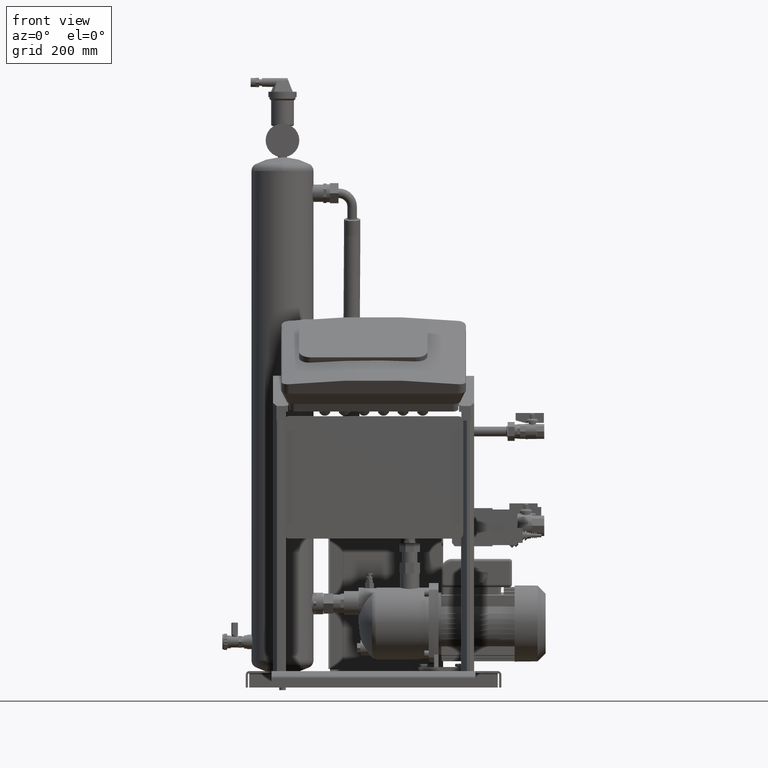
[diagram: clean part render]
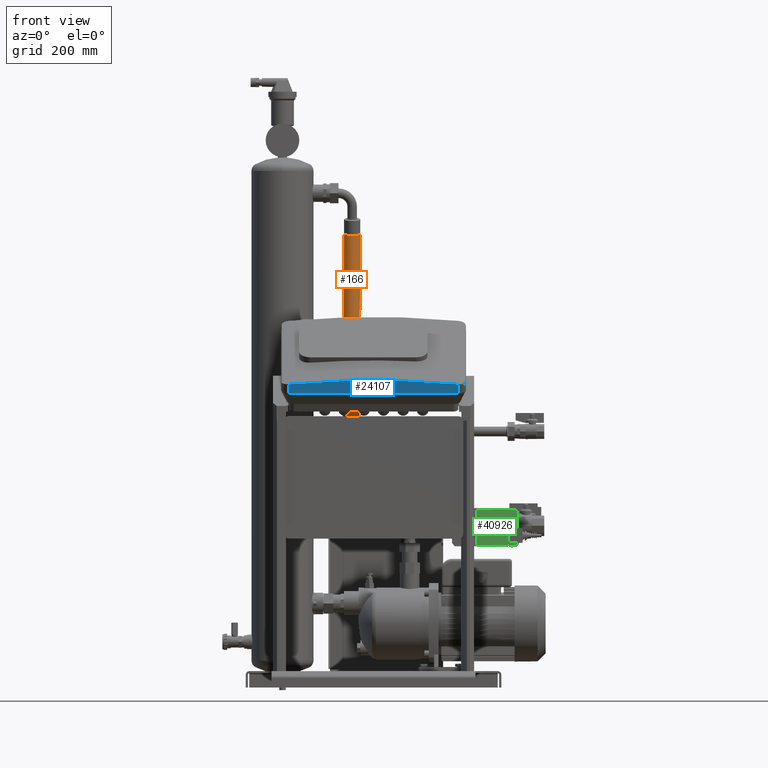
[diagram: same view with three faces highlighted in distinct colors, each labeled with its STEP entity id]
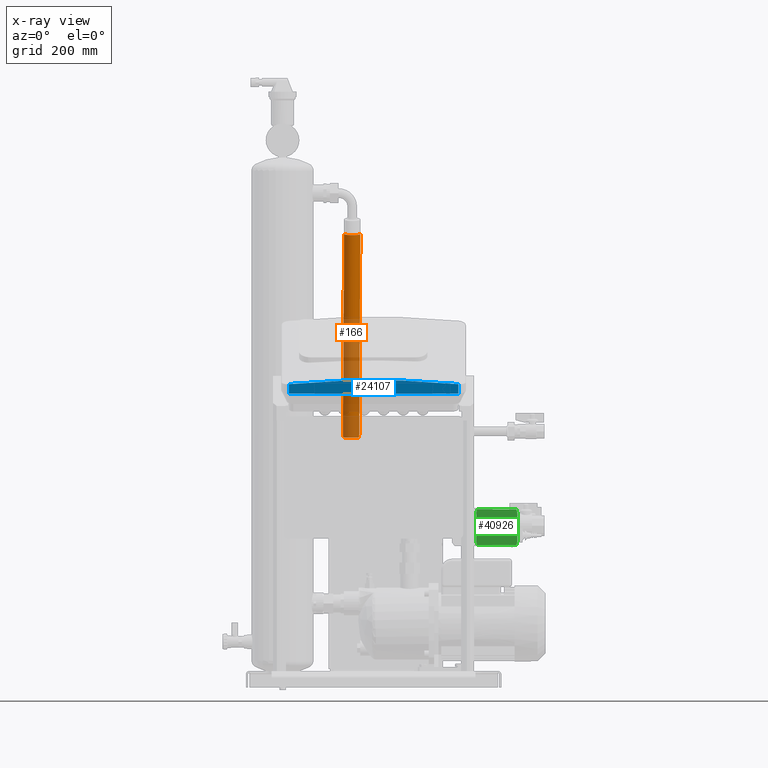
[diagram: x-ray of the same camera — body ghosted, the three highlighted faces saturated]
A machine part, front view with three faces highlighted in distinct colors.
The next image is the same camera in x-ray (body ghosted, the three faces saturated) — at least one of them is partly hidden behind the body in this view.
Their STEP definitions:

[orange] entity #166 — the highlighted cylindrical surface (edge-blend (fillet) strip) has radius 15 mm, axis along (-0.0055, 0.1182, -0.993).
#125=CARTESIAN_POINT('',(5.349371855329085,2.924122272367868,832.10117676889854));
#126=DIRECTION('',(-0.005496319973899,0.118168037126347,-0.992978401310145));
#127=DIRECTION('',(-0.998920034210925,-0.046462514482584,-2.756069E-017));
#128=AXIS2_PLACEMENT_3D('',#125,#126,#127);
#129=CYLINDRICAL_SURFACE('',#128,15.000000000000016);
#130=CARTESIAN_POINT('',(-11.697530050834335,46.58279761279514,459.3763112789191));
#131=VERTEX_POINT('',#130);
#132=CARTESIAN_POINT('',(-9.634428657834807,2.227184555129105,832.10117676889854));
#133=VERTEX_POINT('',#132);
#134=CARTESIAN_POINT('',(-11.697530050834335,46.582797612795147,459.37631127891905));
#135=DIRECTION('',(0.005496319973899,-0.118168037126347,0.992978401310145));
#136=VECTOR('',#135,375.36049625873324);
#137=LINE('',#134,#136);
#138=EDGE_CURVE('',#131,#133,#137,.T.);
#139=ORIENTED_EDGE('',*,*,#138,.F.);
#140=CARTESIAN_POINT('',(18.27007097549345,47.976673047272669,459.37631127891905));
#141=VERTEX_POINT('',#140);
#142=CARTESIAN_POINT('',(3.286270462329557,47.279735330033908,459.3763112789191));
#143=DIRECTION('',(0.005496319973899,-0.118168037126347,0.992978401310145));
#144=DIRECTION('',(-0.998920034210925,-0.046462514482584,-6.968785E-019));
#145=AXIS2_PLACEMENT_3D('',#142,#143,#144);
#146=CIRCLE('',#145,15.000000000000016);
#147=EDGE_CURVE('',#131,#141,#146,.T.);
#148=ORIENTED_EDGE('',*,*,#147,.T.);
#149=CARTESIAN_POINT('',(20.333172368492978,3.621059989606628,832.10117676889854));
#150=VERTEX_POINT('',#149);
#151=CARTESIAN_POINT('',(18.27007097549345,47.976673047272669,459.37631127891905));
#152=DIRECTION('',(0.005496319973899,-0.118168037126347,0.992978401310145));
#153=VECTOR('',#152,375.36049625873324);
#154=LINE('',#151,#153);
#155=EDGE_CURVE('',#141,#150,#154,.T.);
#156=ORIENTED_EDGE('',*,*,#155,.T.);
#157=CARTESIAN_POINT('',(5.349371855329085,2.924122272367868,832.10117676889854));
#158=DIRECTION('',(-0.005496319973899,0.118168037126347,-0.992978401310145));
#159=DIRECTION('',(-0.998920034210925,-0.046462514482584,0.0));
#160=AXIS2_PLACEMENT_3D('',#157,#158,#159);
#161=CIRCLE('',#160,15.000000000000016);
#162=EDGE_CURVE('',#150,#133,#161,.T.);
#163=ORIENTED_EDGE('',*,*,#162,.T.);
#164=EDGE_LOOP('',(#139,#148,#156,#163));
#165=FACE_OUTER_BOUND('',#164,.T.);
#166=ADVANCED_FACE('',(#165),#129,.T.);

[blue] entity #24107 — the highlighted planar face has unit normal (-0, -0.866, -0.5).
#23850=CARTESIAN_POINT('',(200.74335258335435,-312.03932728061841,556.35312867936625));
#23851=VERTEX_POINT('',#23850);
#23863=CARTESIAN_POINT('',(200.74335258335435,-301.99951318199282,538.96366056200043));
#23864=VERTEX_POINT('',#23863);
#23865=CARTESIAN_POINT('',(200.74335258335435,-312.03932728061841,556.35312867936625));
#23866=DIRECTION('',(0.0,0.5,-0.866025403784438));
#23867=VECTOR('',#23866,20.07962819725115);
#23868=LINE('',#23865,#23867);
#23869=EDGE_CURVE('',#23851,#23864,#23868,.T.);
#23965=CARTESIAN_POINT('',(-111.25664741664586,-301.9995131819926,538.96366056200031));
#23966=VERTEX_POINT('',#23965);
#23974=CARTESIAN_POINT('',(-111.25664741664586,-312.04262580613636,556.35884189315345));
#23975=VERTEX_POINT('',#23974);
#23976=CARTESIAN_POINT('',(-111.25664741664586,-312.04262580613619,556.35884189315357));
#23977=DIRECTION('',(0.0,0.499999999999999,-0.866025403784439));
#23978=VECTOR('',#23977,20.086225248287349);
#23979=LINE('',#23976,#23978);
#23980=EDGE_CURVE('',#23975,#23966,#23979,.T.);
#24085=CARTESIAN_POINT('',(44.73042617825395,-307.33468252597049,548.20444493275386));
#24086=DIRECTION('',(-3.769094E-016,-0.866025403784439,-0.5));
#24087=DIRECTION('',(1.0,0.0,0.0));
#24088=AXIS2_PLACEMENT_3D('',#24085,#24086,#24087);
#24089=PLANE('',#24088);
#24090=ORIENTED_EDGE('',*,*,#23869,.F.);
#24091=CARTESIAN_POINT('',(44.712871936889613,408.73271805206252,-692.06067451217427));
#24092=DIRECTION('',(-3.608225E-016,-0.866025403784438,-0.5));
#24093=DIRECTION('',(0.115201393586965,0.496671078007272,-0.8602595417586));
#24094=AXIS2_PLACEMENT_3D('',#24091,#24092,#24093);
#24095=CIRCLE('',#24094,1449.9637499685948);
#24096=EDGE_CURVE('',#23851,#23975,#24095,.T.);
#24097=ORIENTED_EDGE('',*,*,#24096,.T.);
#24098=ORIENTED_EDGE('',*,*,#23980,.T.);
#24099=CARTESIAN_POINT('',(-111.25664741664586,-301.9995131819926,538.96366056200031));
#24100=DIRECTION('',(1.0,0.0,0.0));
#24101=VECTOR('',#24100,312.00000000000006);
#24102=LINE('',#24099,#24101);
#24103=EDGE_CURVE('',#23966,#23864,#24102,.T.);
#24104=ORIENTED_EDGE('',*,*,#24103,.T.);
#24105=EDGE_LOOP('',(#24090,#24097,#24098,#24104));
#24106=FACE_OUTER_BOUND('',#24105,.T.);
#24107=ADVANCED_FACE('',(#24106),#24089,.T.);

[green] entity #40926 — the highlighted planar face has unit normal (0, -1, 0).
#40757=CARTESIAN_POINT('',(307.68654318495959,-132.80000000000106,260.51220541800006));
#40758=VERTEX_POINT('',#40757);
#40773=CARTESIAN_POINT('',(309.29937185565944,-132.80000000000106,267.7872054180001));
#40774=VERTEX_POINT('',#40773);
#40781=CARTESIAN_POINT('',(307.68654318495959,-132.80000000000106,260.51220541800006));
#40782=DIRECTION('',(0.21643961393458,0.0,0.976296007120714));
#40783=VECTOR('',#40782,7.451633466632129);
#40784=LINE('',#40781,#40783);
#40785=EDGE_CURVE('',#40758,#40774,#40784,.T.);
#40802=CARTESIAN_POINT('',(235.10870953665975,-132.80000000000106,260.51220541800006));
#40803=VERTEX_POINT('',#40802);
#40804=CARTESIAN_POINT('',(235.10870953665975,-132.80000000000106,260.51220541800006));
#40805=DIRECTION('',(1.0,0.0,0.0));
#40806=VECTOR('',#40805,72.577833648299844);
#40807=LINE('',#40804,#40806);
#40808=EDGE_CURVE('',#40803,#40758,#40807,.T.);
#40861=CARTESIAN_POINT('',(309.29937185565944,-132.80000000000106,318.7872054180001));
#40862=VERTEX_POINT('',#40861);
#40869=CARTESIAN_POINT('',(309.29937185565944,-132.80000000000106,267.7872054180001));
#40870=DIRECTION('',(0.0,0.0,1.0));
#40871=VECTOR('',#40870,51.0);
#40872=LINE('',#40869,#40871);
#40873=EDGE_CURVE('',#40774,#40862,#40872,.T.);
#40878=CARTESIAN_POINT('',(229.76187185565948,-132.80000000000106,329.33970541800011));
#40879=DIRECTION('',(0.0,-1.0,0.0));
#40880=DIRECTION('',(0.0,0.0,-1.0));
#40881=AXIS2_PLACEMENT_3D('',#40878,#40879,#40880);
#40882=PLANE('',#40881);
#40883=CARTESIAN_POINT('',(233.54937185565947,-132.80000000000106,318.72609841250005));
#40884=VERTEX_POINT('',#40883);
#40885=CARTESIAN_POINT('',(233.54937185565947,-132.80000000000106,267.84831242350009));
#40886=VERTEX_POINT('',#40885);
#40887=CARTESIAN_POINT('',(233.54937185565947,-132.80000000000106,318.72609841250005));
#40888=DIRECTION('',(0.0,0.0,-1.0));
#40889=VECTOR('',#40888,50.87778598899996);
#40890=LINE('',#40887,#40889);
#40891=EDGE_CURVE('',#40884,#40886,#40890,.T.);
#40892=ORIENTED_EDGE('',*,*,#40891,.T.);
#40893=CARTESIAN_POINT('',(233.54937185565947,-132.80000000000106,267.84831242350009));
#40894=DIRECTION('',(0.207911690800894,0.0,-0.97814760073739));
#40895=VECTOR('',#40894,7.499999999968918);
#40896=LINE('',#40893,#40895);
#40897=EDGE_CURVE('',#40886,#40803,#40896,.T.);
#40898=ORIENTED_EDGE('',*,*,#40897,.T.);
#40899=ORIENTED_EDGE('',*,*,#40808,.T.);
#40900=ORIENTED_EDGE('',*,*,#40785,.T.);
#40901=ORIENTED_EDGE('',*,*,#40873,.T.);
#40902=CARTESIAN_POINT('',(307.68654318495959,-132.80000000000106,326.06220541800013));
#40903=VERTEX_POINT('',#40902);
#40904=CARTESIAN_POINT('',(309.29937185565944,-132.80000000000106,318.7872054180001));
#40905=DIRECTION('',(-0.21643961393458,0.0,0.976296007120714));
#40906=VECTOR('',#40905,7.451633466632129);
#40907=LINE('',#40904,#40906);
#40908=EDGE_CURVE('',#40862,#40903,#40907,.T.);
#40909=ORIENTED_EDGE('',*,*,#40908,.T.);
#40910=CARTESIAN_POINT('',(235.10870953665975,-132.80000000000106,326.06220541800013));
#40911=VERTEX_POINT('',#40910);
#40912=CARTESIAN_POINT('',(307.68654318495959,-132.80000000000106,326.06220541800013));
#40913=DIRECTION('',(-1.0,0.0,0.0));
#40914=VECTOR('',#40913,72.577833648299844);
#40915=LINE('',#40912,#40914);
#40916=EDGE_CURVE('',#40903,#40911,#40915,.T.);
#40917=ORIENTED_EDGE('',*,*,#40916,.T.);
#40918=CARTESIAN_POINT('',(233.54937185565947,-132.80000000000106,318.72609841250005));
#40919=DIRECTION('',(0.207911690800893,0.0,0.978147600737391));
#40920=VECTOR('',#40919,7.499999999968974);
#40921=LINE('',#40918,#40920);
#40922=EDGE_CURVE('',#40911,#40884,#40921,.F.);
#40923=ORIENTED_EDGE('',*,*,#40922,.T.);
#40924=EDGE_LOOP('',(#40892,#40898,#40899,#40900,#40901,#40909,#40917,#40923));
#40925=FACE_OUTER_BOUND('',#40924,.T.);
#40926=ADVANCED_FACE('',(#40925),#40882,.T.);